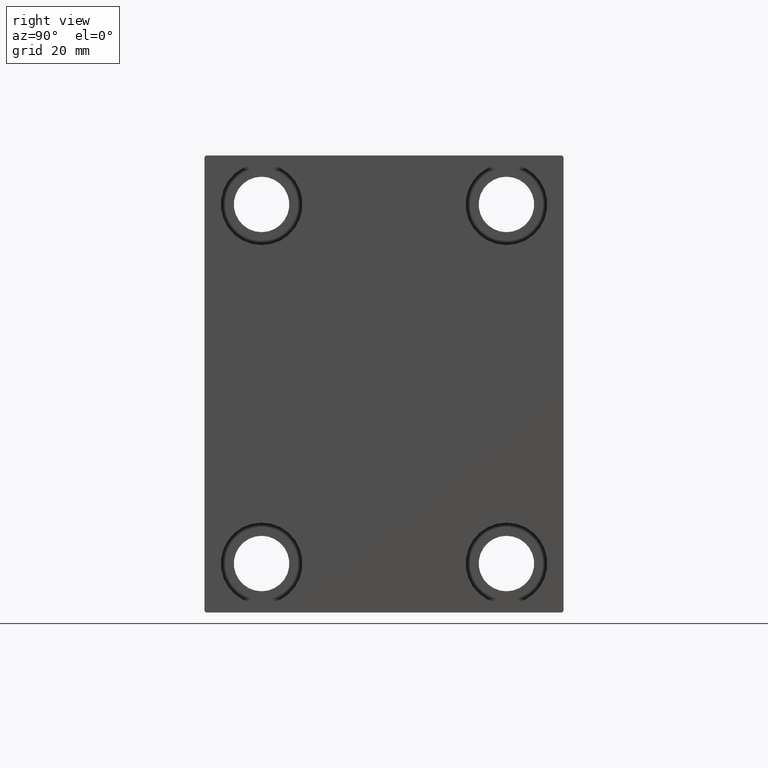
[diagram: clean part render]
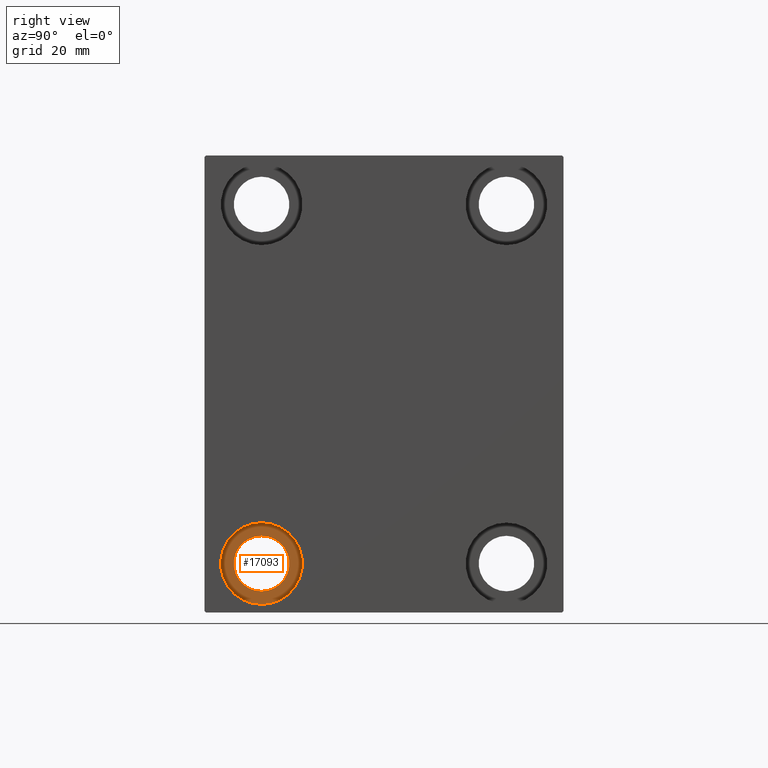
[diagram: same view with one face highlighted and labeled with its STEP entity id]
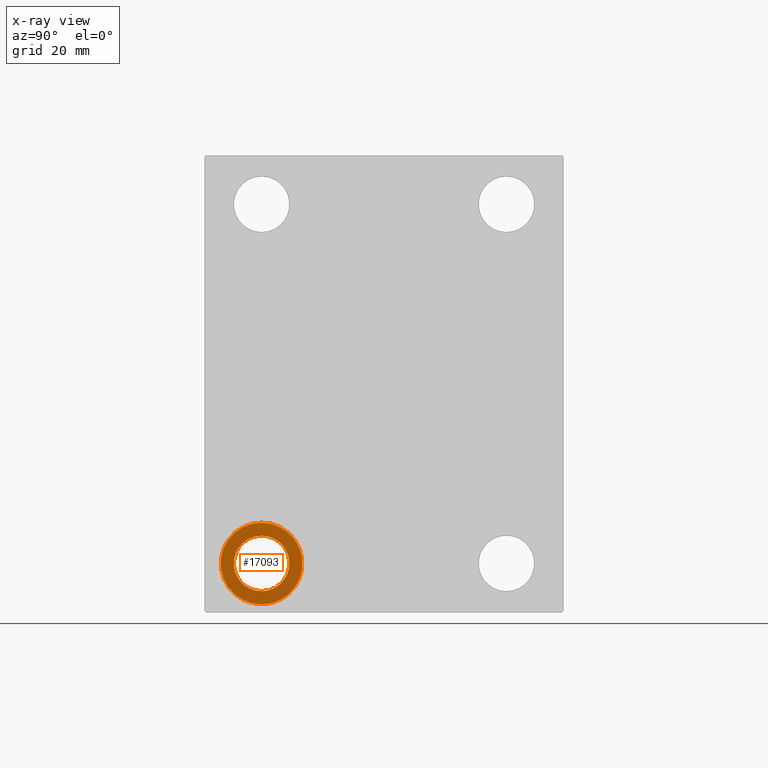
[diagram: x-ray of the same camera — body ghosted, the highlighted face saturated]
A machine part, right view. The second image highlights one B-rep face of the part: STEP entity #17093.
The next image is the same camera in x-ray: the body ghosted, the highlighted face saturated — about 0% of this face is hidden behind the body in this view.
In plain terms, the highlighted planar face has unit normal (1, 0, 0).
Its self-contained STEP definition (entity closure, byte-faithful):
#1422 = CIRCLE ( 'NONE', #42653, 8.499999999999992895 ) ;
#3235 = CARTESIAN_POINT ( 'NONE',  ( 106.0000000000000000, 0.000000000000000000, 0.000000000000000000 ) ) ;
#4360 = DIRECTION ( 'NONE',  ( -1.000000000000000000, -0.000000000000000000, -0.000000000000000000 ) ) ;
#4557 = AXIS2_PLACEMENT_3D ( 'NONE', #8771, #29045, #18802 ) ;
#4797 = EDGE_CURVE ( 'NONE', #16812, #35059, #25586, .T. ) ;
#7538 = EDGE_CURVE ( 'NONE', #29293, #17957, #8569, .T. ) ;
#8323 = ORIENTED_EDGE ( 'NONE', *, *, #21973, .F. ) ;
#8569 = CIRCLE ( 'NONE', #12895, 12.49999999999999645 ) ;
#8771 = CARTESIAN_POINT ( 'NONE',  ( 106.0000000000000000, -37.50000000000002132, -54.99999999999999289 ) ) ;
#8826 = DIRECTION ( 'NONE',  ( -1.000000000000000000, -0.000000000000000000, -0.000000000000000000 ) ) ;
#9119 = CARTESIAN_POINT ( 'NONE',  ( 106.0000000000000000, -37.50000000000002132, -54.99999999999999289 ) ) ;
#12895 = AXIS2_PLACEMENT_3D ( 'NONE', #15526, #8826, #22428 ) ;
#13018 = CARTESIAN_POINT ( 'NONE',  ( 106.0000000000000000, -37.50000000000002132, -63.49999999999998579 ) ) ;
#13771 = EDGE_LOOP ( 'NONE', ( #15116, #15343 ) ) ;
#15116 = ORIENTED_EDGE ( 'NONE', *, *, #4797, .T. ) ;
#15343 = ORIENTED_EDGE ( 'NONE', *, *, #38699, .T. ) ;
#15526 = CARTESIAN_POINT ( 'NONE',  ( 106.0000000000000000, -37.50000000000002132, -54.99999999999999289 ) ) ;
#16812 = VERTEX_POINT ( 'NONE', #37129 ) ;
#17093 = ADVANCED_FACE ( 'NONE', ( #27291, #39986 ), #23955, .T. ) ;
#17770 = AXIS2_PLACEMENT_3D ( 'NONE', #42415, #4360, #31954 ) ;
#17957 = VERTEX_POINT ( 'NONE', #37137 ) ;
#18802 = DIRECTION ( 'NONE',  ( 0.000000000000000000, 0.000000000000000000, 1.000000000000000000 ) ) ;
#21973 = EDGE_CURVE ( 'NONE', #17957, #29293, #34443, .T. ) ;
#22428 = DIRECTION ( 'NONE',  ( 0.000000000000000000, 0.000000000000000000, 1.000000000000000000 ) ) ;
#22725 = DIRECTION ( 'NONE',  ( -1.000000000000000000, -0.000000000000000000, -0.000000000000000000 ) ) ;
#23955 = PLANE ( 'NONE',  #29334 ) ;
#24527 = ORIENTED_EDGE ( 'NONE', *, *, #7538, .F. ) ;
#25586 = CIRCLE ( 'NONE', #17770, 8.499999999999992895 ) ;
#27291 = FACE_OUTER_BOUND ( 'NONE', #42827, .T. ) ;
#29045 = DIRECTION ( 'NONE',  ( -1.000000000000000000, -0.000000000000000000, -0.000000000000000000 ) ) ;
#29293 = VERTEX_POINT ( 'NONE', #38787 ) ;
#29334 = AXIS2_PLACEMENT_3D ( 'NONE', #3235, #30616, #43311 ) ;
#30616 = DIRECTION ( 'NONE',  ( 1.000000000000000000, 0.000000000000000000, -0.000000000000000000 ) ) ;
#31954 = DIRECTION ( 'NONE',  ( 0.000000000000000000, 0.000000000000000000, -1.000000000000000000 ) ) ;
#34443 = CIRCLE ( 'NONE', #4557, 12.49999999999999645 ) ;
#35059 = VERTEX_POINT ( 'NONE', #13018 ) ;
#36274 = DIRECTION ( 'NONE',  ( 0.000000000000000000, 0.000000000000000000, -1.000000000000000000 ) ) ;
#37129 = CARTESIAN_POINT ( 'NONE',  ( 106.0000000000000000, -37.50000000000002132, -46.50000000000000000 ) ) ;
#37137 = CARTESIAN_POINT ( 'NONE',  ( 106.0000000000000000, -37.50000000000002132, -42.49999999999999289 ) ) ;
#38699 = EDGE_CURVE ( 'NONE', #35059, #16812, #1422, .T. ) ;
#38787 = CARTESIAN_POINT ( 'NONE',  ( 106.0000000000000000, -37.50000000000002132, -67.49999999999998579 ) ) ;
#39986 = FACE_BOUND ( 'NONE', #13771, .T. ) ;
#42415 = CARTESIAN_POINT ( 'NONE',  ( 106.0000000000000000, -37.50000000000002132, -54.99999999999999289 ) ) ;
#42653 = AXIS2_PLACEMENT_3D ( 'NONE', #9119, #22725, #36274 ) ;
#42827 = EDGE_LOOP ( 'NONE', ( #24527, #8323 ) ) ;
#43311 = DIRECTION ( 'NONE',  ( 0.000000000000000000, 0.000000000000000000, 1.000000000000000000 ) ) ;